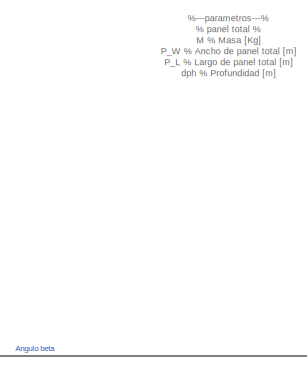
[diagram: root canvas - part 1/7, top left region]
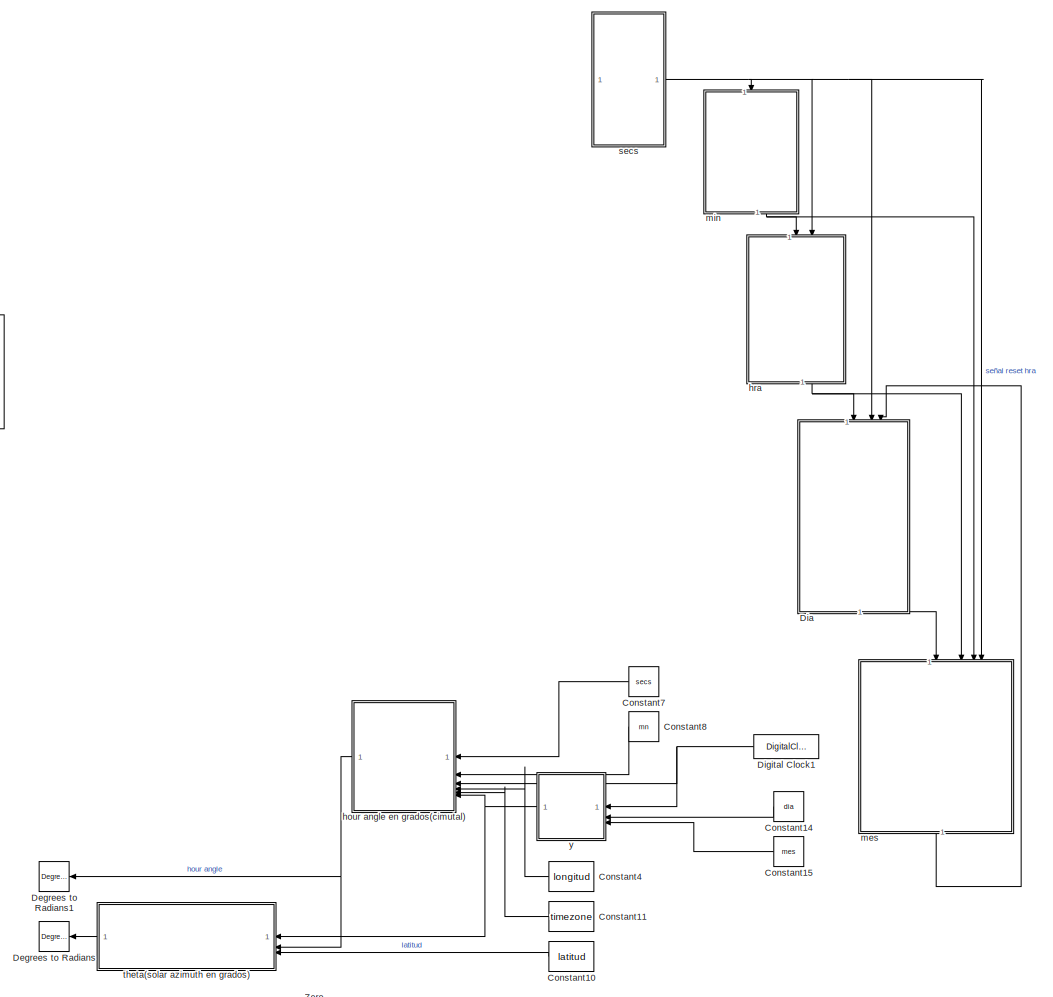
[diagram: root canvas - part 2/7, central region]
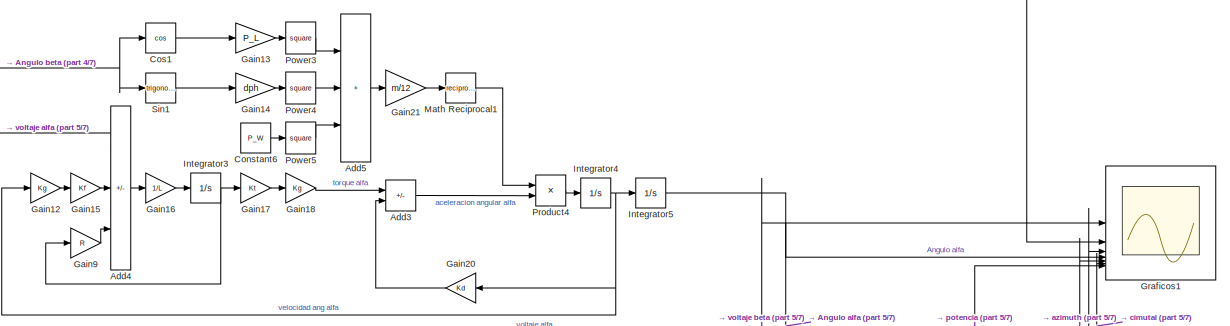
[diagram: root canvas - part 3/7, middle left region]
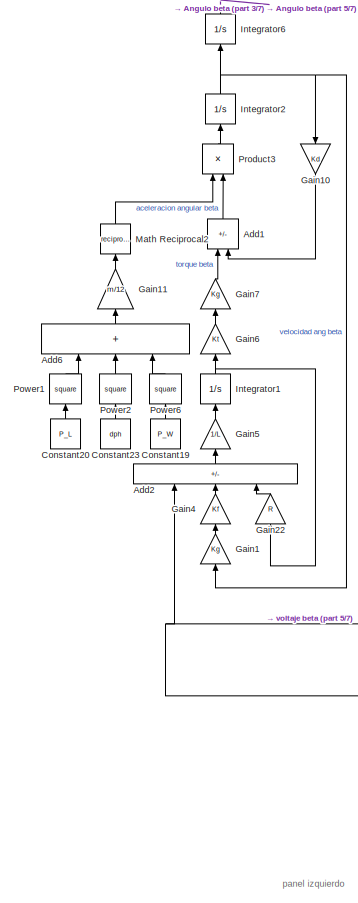
[diagram: root canvas - part 4/7, middle left region]
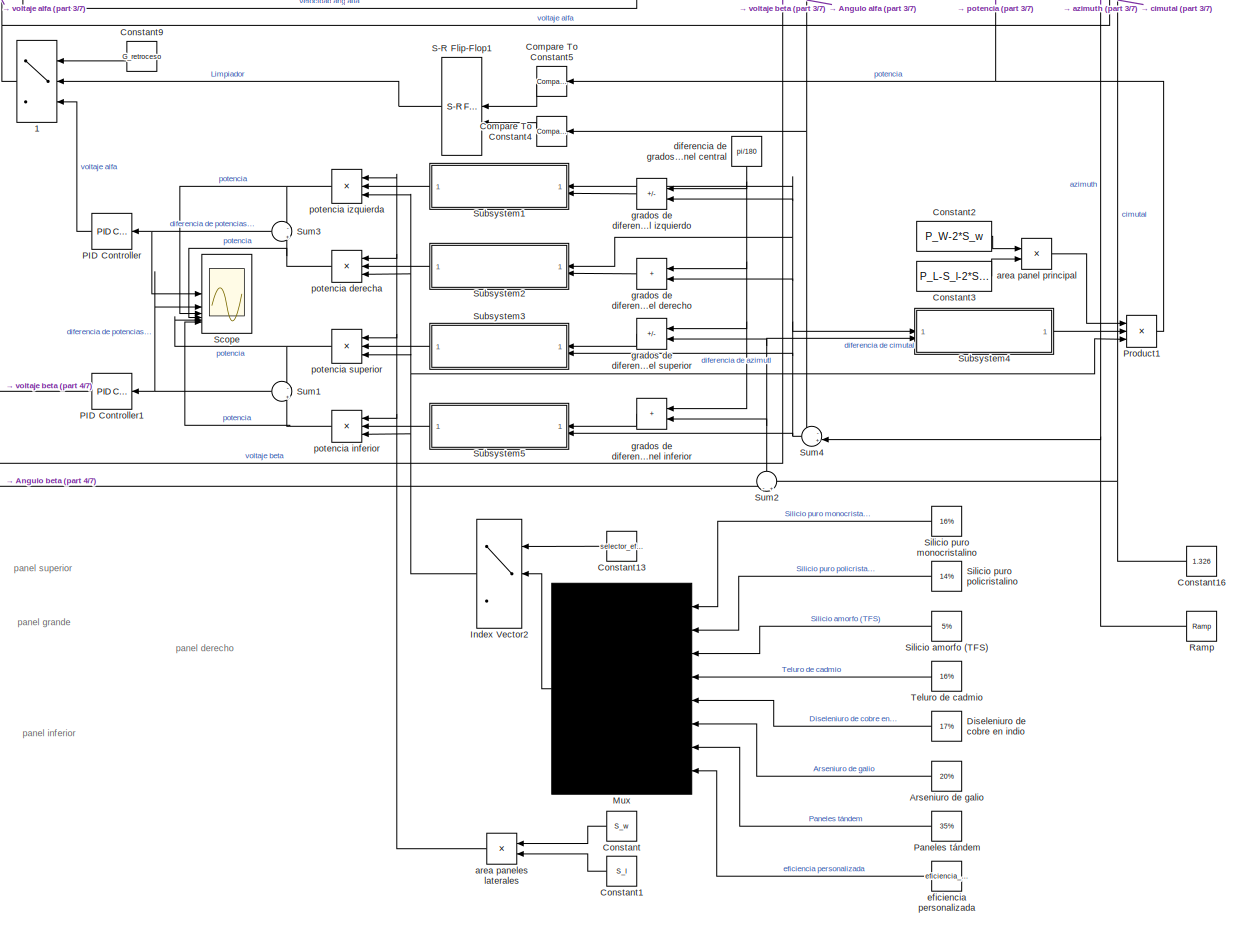
[diagram: root canvas - part 5/7, bottom left region]
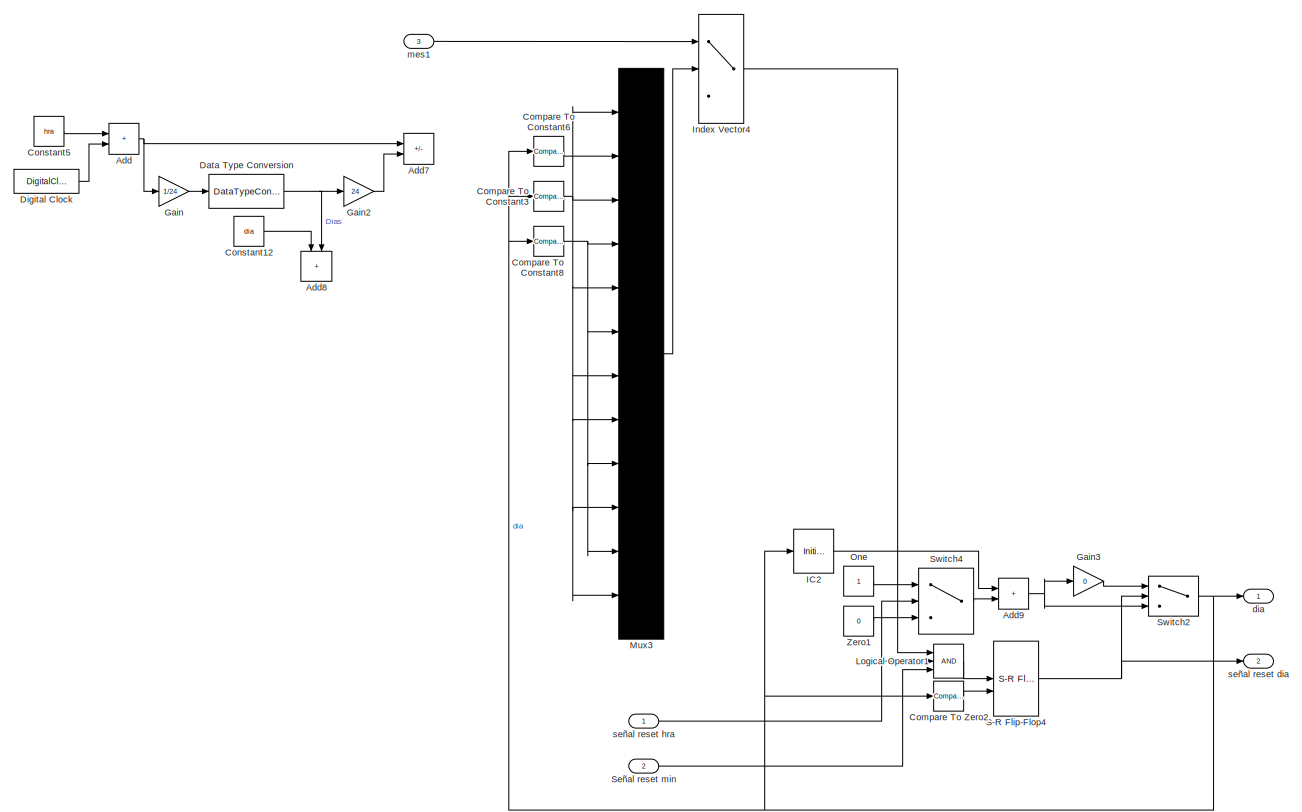
[diagram: root canvas - part 6/7, bottom right region]
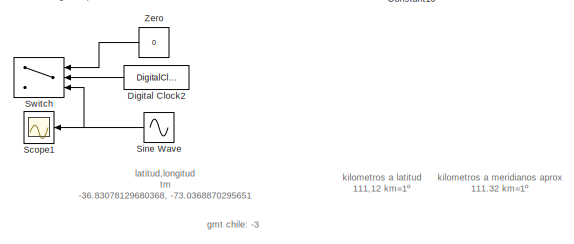
[diagram: root canvas - part 7/7, bottom center region]
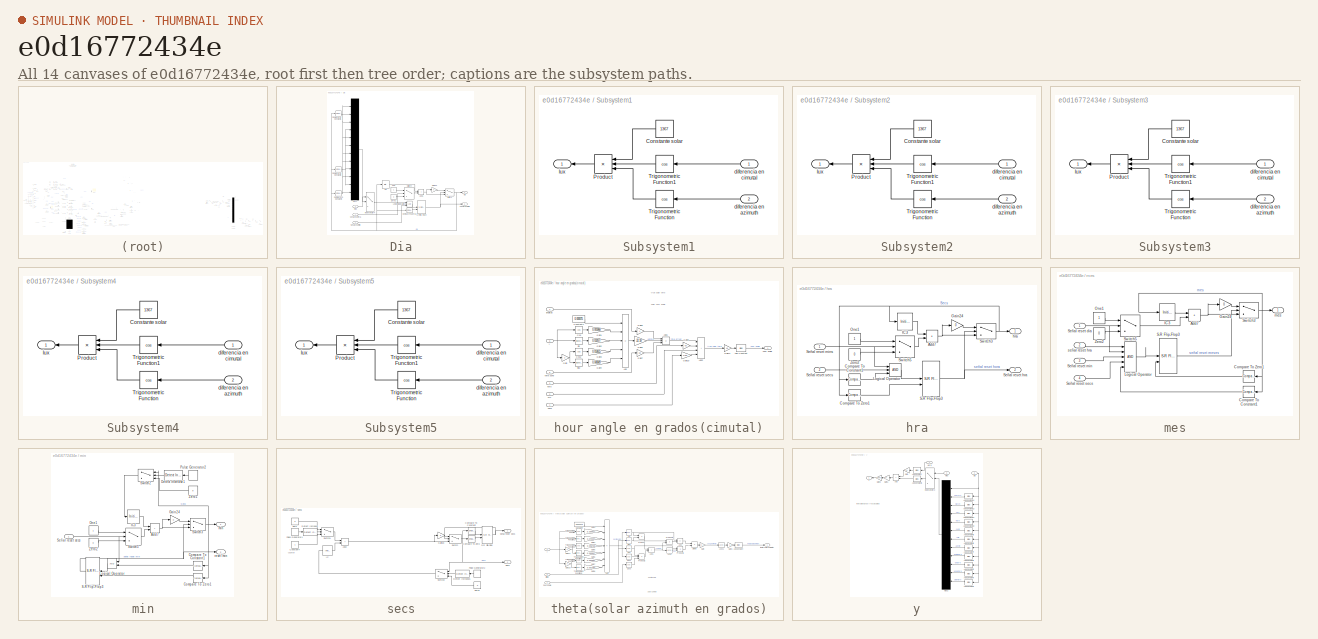
[diagram: thumbnail index - all 14 canvases of the model, root first then tree order]
MODEL slx_e0d16772434e
KIND model
CONFIG AbsTol = auto
CONFIG EnableMultiTasking = off
CONFIG FixedStep = auto
CONFIG MaxStep = auto
CONFIG MinStep = auto
CONFIG RelTol = 1e-3
CONFIG SampleTimeConstraint = Unconstrained
CONFIG SolverName = VariableStepAuto
CONFIG StartTime = 0.0
CONFIG StopTime = 10.0
WORKSPACE source: mxarray member
WORKSPACE Sig: Simulink.Signal (value not decoded)
BLOCK [Switch] 1
  Criteria = u2 > Threshold
  InputSameDT = off
  SaturateOnIntegerOverflow = off
BLOCK [Sum] Add
  Commented = on
  IconShape = rectangular
BLOCK [Sum] Add1
  IconShape = rectangular
  Inputs = +-
  NameLocation = right
BLOCK [Sum] Add2
  IconShape = rectangular
  Inputs = +--
  NameLocation = right
BLOCK [Sum] Add3
  IconShape = rectangular
  Inputs = +-
BLOCK [Sum] Add4
  IconShape = rectangular
  Inputs = +--
BLOCK [Sum] Add5
  IconShape = rectangular
  Inputs = +++
BLOCK [Sum] Add6
  IconShape = rectangular
  Inputs = +++
  NameLocation = right
BLOCK [Sum] Add7
  Commented = on
  IconShape = rectangular
  Inputs = +-
BLOCK [Sum] Add8
  Commented = on
  IconShape = rectangular
  NameLocation = left
BLOCK [Sum] Add9
  Commented = on
  IconShape = rectangular
BLOCK [Constant] Arseniuro de galio 
  Value = 20%
BLOCK [Reference] Compare To Constant3  REF=simulink/Logic and Bit
Operations/Compare
To Constant
  Commented = on
  SourceBlock = simulink/Logic and Bit\nOperations/Compare\nTo Constant
  SourceType = Compare To Constant
BLOCK [Reference] Compare To Constant4  REF=simulink/Logic and Bit
Operations/Compare
To Constant
  SourceBlock = simulink/Logic and Bit\nOperations/Compare\nTo Constant
  SourceType = Compare To Constant
BLOCK [Reference] Compare To Constant5  REF=simulink/Logic and Bit
Operations/Compare
To Constant
  SourceBlock = simulink/Logic and Bit\nOperations/Compare\nTo Constant
  SourceType = Compare To Constant
BLOCK [Reference] Compare To Constant6  REF=simulink/Logic and Bit
Operations/Compare
To Constant
  Commented = on
  SourceBlock = simulink/Logic and Bit\nOperations/Compare\nTo Constant
  SourceType = Compare To Constant
BLOCK [Reference] Compare To Constant8  REF=simulink/Logic and Bit
Operations/Compare
To Constant
  Commented = on
  SourceBlock = simulink/Logic and Bit\nOperations/Compare\nTo Constant
  SourceType = Compare To Constant
BLOCK [Reference] Compare To Zero2  REF=simulink/Logic and Bit
Operations/Compare
To Zero
  Commented = on
  SourceBlock = simulink/Logic and Bit\nOperations/Compare\nTo Zero
  SourceType = Compare To Zero
BLOCK [Constant] Constant
  NameLocation = top
  Value = S_w
BLOCK [Constant] Constant1
  NameLocation = top
  Value = S_l
BLOCK [Constant] Constant10
  NameLocation = top
  Value = latitud
BLOCK [Constant] Constant11
  NameLocation = top
  Value = timezone
BLOCK [Constant] Constant12
  Commented = on
  Value = dia
BLOCK [Constant] Constant13
  Value = selector_eficiencia
BLOCK [Constant] Constant14
  NameLocation = top
  Value = dia
BLOCK [Constant] Constant15
  NameLocation = top
  Value = mes
BLOCK [Constant] Constant16
  NameLocation = top
  Value = 1.326
BLOCK [Constant] Constant19
  NameLocation = right
  Value = P_W
BLOCK [Constant] Constant2
  NameLocation = top
  Value = P_W-2*S_w
BLOCK [Constant] Constant20
  NameLocation = right
  Value = P_L
BLOCK [Constant] Constant23
  NameLocation = right
  Value = dph
BLOCK [Constant] Constant3
  NameLocation = top
  Value = P_L-S_l-2*S_w
BLOCK [Constant] Constant4
  NameLocation = top
  Value = longitud
BLOCK [Constant] Constant5
  Commented = on
  Value = hra
BLOCK [Constant] Constant6
  Value = P_W
BLOCK [Constant] Constant7
  NameLocation = top
  Value = secs
BLOCK [Constant] Constant8
  NameLocation = top
  Value = mn
BLOCK [Constant] Constant9
  NameLocation = top
  Value = G_retroceso
BLOCK [Trigonometry] Cos1
  Operator = cos
BLOCK [DataTypeConversion] Data Type Conversion
  Commented = on
  RndMeth = Floor
  SaturateOnIntegerOverflow = off
BLOCK [Reference] Degrees to Radians  REF=simulink_extras/Transformations/Degrees to
Radians
  NameLocation = top
  SourceBlock = simulink_extras/Transformations/Degrees to\nRadians
  SourceType = DegreesToRadians
BLOCK [Reference] Degrees to Radians1  REF=simulink_extras/Transformations/Degrees to
Radians
  NameLocation = top
  SourceBlock = simulink_extras/Transformations/Degrees to\nRadians
  SourceType = DegreesToRadians
BLOCK [SubSystem] Dia
  NameLocation = left
BLOCK [Sum] Dia/Add6
  IconShape = rectangular
BLOCK [Reference] Dia/Compare To Constant3  REF=simulink/Logic and Bit
Operations/Compare
To Constant
  SourceBlock = simulink/Logic and Bit\nOperations/Compare\nTo Constant
  SourceType = Compare To Constant
BLOCK [Reference] Dia/Compare To Constant6  REF=simulink/Logic and Bit
Operations/Compare
To Constant
  SourceBlock = simulink/Logic and Bit\nOperations/Compare\nTo Constant
  SourceType = Compare To Constant
BLOCK [Reference] Dia/Compare To Constant8  REF=simulink/Logic and Bit
Operations/Compare
To Constant
  SourceBlock = simulink/Logic and Bit\nOperations/Compare\nTo Constant
  SourceType = Compare To Constant
BLOCK [Reference] Dia/Compare To Zero2  REF=simulink/Logic and Bit
Operations/Compare
To Zero
  SourceBlock = simulink/Logic and Bit\nOperations/Compare\nTo Zero
  SourceType = Compare To Zero
BLOCK [Gain] Dia/Gain22
  Gain = 0
BLOCK [InitialCondition] Dia/IC2
  Value = dia
BLOCK [MultiPortSwitch] Dia/Index Vector4
  DataPortOrder = Zero-based contiguous
  InputSameDT = off
  Inputs = 1
  NameLocation = top
  SaturateOnIntegerOverflow = off
  zeroidx = on
BLOCK [Logic] Dia/Logical Operator1
  AllPortsSameDT = off
  Inputs = 3
  OutDataTypeStr = boolean
BLOCK [Mux] Dia/Mux3
  DisplayOption = signals
  Inputs = 12
  NameLocation = top
BLOCK [Constant] Dia/One
  OutDataTypeStr = Inherit: Inherit via back propagation
BLOCK [Reference] Dia/S-R Flip-Flop4  REF=simulink_extras/Flip Flops/S-R
Flip-Flop
  SourceBlock = simulink_extras/Flip Flops/S-R\nFlip-Flop
  SourceType = SRFlipFlop
BLOCK [Inport] Dia/Señal reset min
  Port = 2
BLOCK [Switch] Dia/Switch2
  Criteria = u2 > Threshold
  InputSameDT = off
  SaturateOnIntegerOverflow = off
BLOCK [Switch] Dia/Switch4
  Criteria = u2 > Threshold
  InputSameDT = off
  SaturateOnIntegerOverflow = off
BLOCK [Constant] Dia/Zero1
  OutDataTypeStr = Inherit: Inherit via back propagation
  Value = 0
BLOCK [Outport] Dia/dia
  NameLocation = top
BLOCK [Inport] Dia/mes
  Port = 3
BLOCK [Outport] Dia/señal reset dia
  Port = 2
BLOCK [Inport] Dia/señal reset hra
BLOCK [DigitalClock] Digital Clock
  Commented = on
BLOCK [DigitalClock] Digital Clock1
  NameLocation = top
BLOCK [DigitalClock] Digital Clock2
  NameLocation = top
BLOCK [Constant] Diseleniuro de cobre en indio
  Value = 17%
BLOCK [Gain] Gain
  Commented = on
  Gain = 1/24
BLOCK [Gain] Gain1
  Gain = Kg
  NameLocation = right
BLOCK [Gain] Gain10
  Gain = Kd
  NameLocation = right
BLOCK [Gain] Gain11
  Gain = m/12
  NameLocation = right
BLOCK [Gain] Gain12
  Gain = Kg
BLOCK [Gain] Gain13
  Gain = P_L
BLOCK [Gain] Gain14
  Gain = dph
BLOCK [Gain] Gain15
  Gain = Kf
BLOCK [Gain] Gain16
  Gain = 1/L
BLOCK [Gain] Gain17
  Gain = Kt
BLOCK [Gain] Gain18
  Gain = Kg
BLOCK [Gain] Gain2
  Commented = on
  Gain = 24
BLOCK [Gain] Gain20
  Gain = Kd
BLOCK [Gain] Gain21
  Gain = m/12
BLOCK [Gain] Gain22
  Gain = R
  NameLocation = right
BLOCK [Gain] Gain3
  Commented = on
  Gain = 0
BLOCK [Gain] Gain4
  Gain = Kf
  NameLocation = right
BLOCK [Gain] Gain5
  Gain = 1/L
  NameLocation = right
BLOCK [Gain] Gain6
  Gain = Kt
  NameLocation = right
BLOCK [Gain] Gain7
  Gain = Kg
  NameLocation = right
BLOCK [Gain] Gain9
  Gain = R
BLOCK [Scope] Graficos1
  Floating = off
  NumInputPorts = 7
  ScopeSpecificationString = Simulink.scopes.TimeScopeBlockCfg('CurrentConfiguration', extmgr.ConfigurationSet(extmgr.Configuration('Core','General UI',true,'DisplayFullSourceName',true),extmgr.Configuration('Core','Source UI',true),extmgr.Configuration('Sources','WiredSimulink',true,'DataLoggingVariableName','ScopeData1'),extmgr.Configuration('Visuals','Time Domain',true,'SerializedDisplays',{struct('MinYLimReal','-18.75161'...<+6292ch>
BLOCK [InitialCondition] IC2
  Commented = on
  Value = dia
BLOCK [MultiPortSwitch] Index Vector2
  DataPortOrder = Zero-based contiguous
  InputSameDT = off
  Inputs = 1
  SaturateOnIntegerOverflow = off
  zeroidx = on
BLOCK [MultiPortSwitch] Index Vector4
  Commented = on
  DataPortOrder = Zero-based contiguous
  InputSameDT = off
  Inputs = 1
  NameLocation = top
  SaturateOnIntegerOverflow = off
  zeroidx = on
BLOCK [Integrator] Integrator1
  NameLocation = right
BLOCK [Integrator] Integrator2
  NameLocation = right
BLOCK [Integrator] Integrator3
BLOCK [Integrator] Integrator4
BLOCK [Integrator] Integrator5
BLOCK [Integrator] Integrator6
  NameLocation = right
BLOCK [Logic] Logical Operator1
  AllPortsSameDT = off
  Commented = on
  Inputs = 3
  OutDataTypeStr = boolean
BLOCK [Math] Math Reciprocal1
  Operator = reciprocal
  SignedPower = on
BLOCK [Math] Math Reciprocal2
  NameLocation = top
  Operator = reciprocal
  SignedPower = on
BLOCK [Mux] Mux
  DisplayOption = signals
  Inputs = 8
BLOCK [Mux] Mux3
  Commented = on
  DisplayOption = signals
  Inputs = 12
  NameLocation = top
BLOCK [Constant] One
  Commented = on
  OutDataTypeStr = Inherit: Inherit via back propagation
BLOCK [Reference] PID Controller  REF=slpidlib/PID Controller
  LibrarySourceBlock = simulink/Continuous/PID Controller
  NameLocation = top
  SourceBlock = slpidlib/PID Controller
  SourceType = PID 1dof
BLOCK [Reference] PID Controller1  REF=slpidlib/PID Controller
  LibrarySourceBlock = simulink/Continuous/PID Controller
  NameLocation = top
  SourceBlock = slpidlib/PID Controller
  SourceType = PID 1dof
BLOCK [Constant] Paneles tándem
  Value = 35%
BLOCK [Math] Power1
  NameLocation = right
  Operator = square
BLOCK [Math] Power2
  NameLocation = right
  Operator = square
BLOCK [Math] Power3
  Operator = square
BLOCK [Math] Power4
  Operator = square
BLOCK [Math] Power5
  Operator = square
BLOCK [Math] Power6
  NameLocation = right
  Operator = square
BLOCK [Product] Product1
  Inputs = 3
  NameLocation = top
BLOCK [Product] Product3
  NameLocation = right
BLOCK [Product] Product4
BLOCK [Reference] Ramp  REF=simulink/Sources/Ramp
  NameLocation = top
  SourceBlock = simulink/Sources/Ramp
  SourceType = Ramp
BLOCK [Reference] S-R Flip-Flop1  REF=simulink_extras/Flip Flops/S-R
Flip-Flop
  SourceBlock = simulink_extras/Flip Flops/S-R\nFlip-Flop
  SourceType = SRFlipFlop
BLOCK [Reference] S-R Flip-Flop4  REF=simulink_extras/Flip Flops/S-R
Flip-Flop
  Commented = on
  SourceBlock = simulink_extras/Flip Flops/S-R\nFlip-Flop
  SourceType = SRFlipFlop
BLOCK [Scope] Scope
  Floating = off
  NumInputPorts = 6
  ScopeSpecificationString = Simulink.scopes.TimeScopeBlockCfg('CurrentConfiguration', extmgr.ConfigurationSet(extmgr.Configuration('Core','General UI',true),extmgr.Configuration('Core','Source UI',true),extmgr.Configuration('Sources','WiredSimulink',true,'DataLoggingVariableName','ScopeData1'),extmgr.Configuration('Visuals','Time Domain',true,'SerializedDisplays',{struct('MinYLimReal','-9.54298','MaxYLimReal','9.54298','YLab...<+4890ch>
BLOCK [Scope] Scope1
  Floating = off
  NameLocation = top
  NumInputPorts = 1
  ScopeSpecificationString = Simulink.scopes.TimeScopeBlockCfg('CurrentConfiguration', extmgr.ConfigurationSet(extmgr.Configuration('Core','General UI',true),extmgr.Configuration('Core','Source UI',true),extmgr.Configuration('Sources','WiredSimulink',true,'DataLoggingVariableName','ScopeData2'),extmgr.Configuration('Visuals','Time Domain',true,'SerializedDisplays',{struct('MinYLimReal','-1.00000','MaxYLimReal','1.00000','YLab...<+1557ch>
BLOCK [Inport] Señal reset min
  Port = 2
BLOCK [Constant] Silicio amorfo (TFS)
  Value = 5%
BLOCK [Constant] Silicio puro monocristalino
  Value = 16%
BLOCK [Constant] Silicio puro policristalino
  Value = 14%
BLOCK [Trigonometry] Sin1
BLOCK [Sin] Sine Wave
  Amplitude = 1.22438338
  Frequency = 1/4.3
  NameLocation = top
  SampleTime = 0
BLOCK [SubSystem] Subsystem1
  NameLocation = top
BLOCK [Constant] Subsystem1/Constante solar
  NameLocation = top
  Value = 1367
BLOCK [Product] Subsystem1/Product
  Inputs = 3
  NameLocation = top
BLOCK [Trigonometry] Subsystem1/Trigonometric Function
  NameLocation = top
  Operator = cos
BLOCK [Trigonometry] Subsystem1/Trigonometric Function1
  NameLocation = top
  Operator = cos
BLOCK [Inport] Subsystem1/diferencia en azimuth
  NameLocation = top
  Port = 2
BLOCK [Inport] Subsystem1/diferencia en cimutal
  NameLocation = top
BLOCK [Outport] Subsystem1/lux
  NameLocation = top
BLOCK [SubSystem] Subsystem2
  NameLocation = top
BLOCK [Constant] Subsystem2/Constante solar
  NameLocation = top
  Value = 1367
BLOCK [Product] Subsystem2/Product
  Inputs = 3
  NameLocation = top
BLOCK [Trigonometry] Subsystem2/Trigonometric Function
  NameLocation = top
  Operator = cos
BLOCK [Trigonometry] Subsystem2/Trigonometric Function1
  NameLocation = top
  Operator = cos
BLOCK [Inport] Subsystem2/diferencia en azimuth
  NameLocation = top
  Port = 2
BLOCK [Inport] Subsystem2/diferencia en cimutal
  NameLocation = top
BLOCK [Outport] Subsystem2/lux
  NameLocation = top
BLOCK [SubSystem] Subsystem3
  NameLocation = top
BLOCK [Constant] Subsystem3/Constante solar
  NameLocation = top
  Value = 1367
BLOCK [Product] Subsystem3/Product
  Inputs = 3
  NameLocation = top
BLOCK [Trigonometry] Subsystem3/Trigonometric Function
  NameLocation = top
  Operator = cos
BLOCK [Trigonometry] Subsystem3/Trigonometric Function1
  NameLocation = top
  Operator = cos
BLOCK [Inport] Subsystem3/diferencia en azimuth
  NameLocation = top
  Port = 2
BLOCK [Inport] Subsystem3/diferencia en cimutal
  NameLocation = top
BLOCK [Outport] Subsystem3/lux
  NameLocation = top
BLOCK [SubSystem] Subsystem4
BLOCK [Constant] Subsystem4/Constante solar
  NameLocation = top
  Value = 1367
BLOCK [Product] Subsystem4/Product
  Inputs = 3
  NameLocation = top
BLOCK [Trigonometry] Subsystem4/Trigonometric Function
  NameLocation = top
  Operator = cos
BLOCK [Trigonometry] Subsystem4/Trigonometric Function1
  NameLocation = top
  Operator = cos
BLOCK [Inport] Subsystem4/diferencia en azimuth
  NameLocation = top
  Port = 2
BLOCK [Inport] Subsystem4/diferencia en cimutal
  NameLocation = top
BLOCK [Outport] Subsystem4/lux
  NameLocation = top
BLOCK [SubSystem] Subsystem5
  NameLocation = top
BLOCK [Constant] Subsystem5/Constante solar
  NameLocation = top
  Value = 1367
BLOCK [Product] Subsystem5/Product
  Inputs = 3
  NameLocation = top
BLOCK [Trigonometry] Subsystem5/Trigonometric Function
  NameLocation = top
  Operator = cos
BLOCK [Trigonometry] Subsystem5/Trigonometric Function1
  NameLocation = top
  Operator = cos
BLOCK [Inport] Subsystem5/diferencia en azimuth
  NameLocation = top
  Port = 2
BLOCK [Inport] Subsystem5/diferencia en cimutal
  NameLocation = top
BLOCK [Outport] Subsystem5/lux
  NameLocation = top
BLOCK [Sum] Sum1
  Inputs = -|+
  NameLocation = top
BLOCK [Sum] Sum2
  Inputs = -|+
  NameLocation = right
BLOCK [Sum] Sum3
  Inputs = -|+
  NameLocation = top
BLOCK [Sum] Sum4
  Inputs = -+|
BLOCK [Switch] Switch
  Criteria = u2 > Threshold
  InputSameDT = off
  NameLocation = top
  SaturateOnIntegerOverflow = off
  Threshold = 14
BLOCK [Switch] Switch2
  Commented = on
  Criteria = u2 > Threshold
  InputSameDT = off
  SaturateOnIntegerOverflow = off
BLOCK [Switch] Switch4
  Commented = on
  Criteria = u2 > Threshold
  InputSameDT = off
  SaturateOnIntegerOverflow = off
BLOCK [Constant] Teluro de cadmio 
  Value = 16%
BLOCK [Constant] Zero
  NameLocation = top
  OutDataTypeStr = Inherit: Inherit via back propagation
  Value = 0
BLOCK [Constant] Zero1
  Commented = on
  OutDataTypeStr = Inherit: Inherit via back propagation
  Value = 0
BLOCK [Product] area panel principal
BLOCK [Product] area paneles laterales
BLOCK [Outport] dia
  NameLocation = top
BLOCK [Constant] diferencia de grados respecto al panel central
  NameLocation = left
  Value = pi/180
BLOCK [Constant] eficiencia personalizada
  Value = eficiencia_custom
BLOCK [Sum] grados de diferencia en el panel derecho
  IconShape = rectangular
BLOCK [Sum] grados de diferencia en el panel inferior
  IconShape = rectangular
  NameLocation = top
BLOCK [Sum] grados de diferencia en el panel izquierdo
  IconShape = rectangular
  Inputs = -+
BLOCK [Sum] grados de diferencia en el panel superior
  IconShape = rectangular
  Inputs = -+
  NameLocation = top
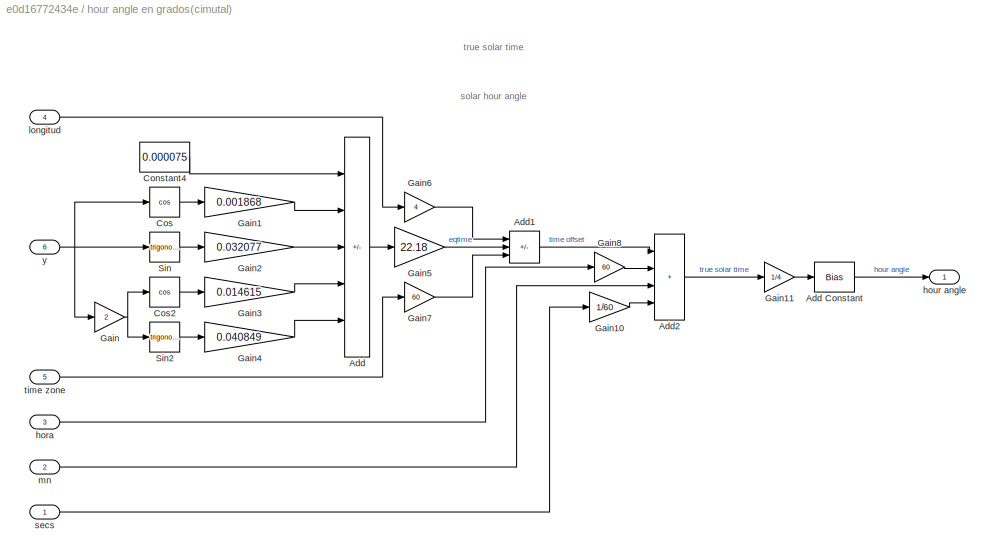
BLOCK [SubSystem] hour angle en grados(cimutal)
  NameLocation = top
BLOCK [Sum] hour angle en grados(cimutal)/Add
  IconShape = rectangular
  Inputs = ++---
BLOCK [Bias] hour angle en grados(cimutal)/Add Constant
  Bias = -180
  SaturateOnIntegerOverflow = off
BLOCK [Sum] hour angle en grados(cimutal)/Add1
  IconShape = rectangular
  Inputs = ++-
BLOCK [Sum] hour angle en grados(cimutal)/Add2
  IconShape = rectangular
  Inputs = ++++
BLOCK [Constant] hour angle en grados(cimutal)/Constant4
  Value = 0.000075
BLOCK [Trigonometry] hour angle en grados(cimutal)/Cos
  Operator = cos
BLOCK [Trigonometry] hour angle en grados(cimutal)/Cos2
  Operator = cos
BLOCK [Gain] hour angle en grados(cimutal)/Gain
  Gain = 2
BLOCK [Gain] hour angle en grados(cimutal)/Gain1
  Gain = 0.001868
BLOCK [Gain] hour angle en grados(cimutal)/Gain10
  Gain = 1/60
BLOCK [Gain] hour angle en grados(cimutal)/Gain11
  Gain = 1/4
BLOCK [Gain] hour angle en grados(cimutal)/Gain2
  Gain = 0.032077
BLOCK [Gain] hour angle en grados(cimutal)/Gain3
  Gain = 0.014615
BLOCK [Gain] hour angle en grados(cimutal)/Gain4
  Gain = 0.040849
BLOCK [Gain] hour angle en grados(cimutal)/Gain5
  Gain = 22.18
BLOCK [Gain] hour angle en grados(cimutal)/Gain6
  Gain = 4
BLOCK [Gain] hour angle en grados(cimutal)/Gain7
  Gain = 60
BLOCK [Gain] hour angle en grados(cimutal)/Gain8
  Gain = 60
BLOCK [Trigonometry] hour angle en grados(cimutal)/Sin
BLOCK [Trigonometry] hour angle en grados(cimutal)/Sin2
BLOCK [Inport] hour angle en grados(cimutal)/hora
  Port = 3
BLOCK [Outport] hour angle en grados(cimutal)/hour angle
BLOCK [Inport] hour angle en grados(cimutal)/longitud
  Port = 4
BLOCK [Inport] hour angle en grados(cimutal)/mn
  Port = 2
BLOCK [Inport] hour angle en grados(cimutal)/secs
BLOCK [Inport] hour angle en grados(cimutal)/time zone
  Port = 5
BLOCK [Inport] hour angle en grados(cimutal)/y
  Port = 6
BLOCK [SubSystem] hra
BLOCK [Sum] hra/Add7
  IconShape = rectangular
BLOCK [Reference] hra/Compare To Constant1  REF=simulink/Logic and Bit
Operations/Compare
To Constant
  SourceBlock = simulink/Logic and Bit\nOperations/Compare\nTo Constant
  SourceType = Compare To Constant
BLOCK [Reference] hra/Compare To Zero1  REF=simulink/Logic and Bit
Operations/Compare
To Zero
  SourceBlock = simulink/Logic and Bit\nOperations/Compare\nTo Zero
  SourceType = Compare To Zero
BLOCK [Gain] hra/Gain24
  Gain = 0
BLOCK [InitialCondition] hra/IC3
  Value = hra
BLOCK [Logic] hra/Logical Operator
  AllPortsSameDT = off
  Inputs = 3
  OutDataTypeStr = boolean
BLOCK [Constant] hra/One1
  OutDataTypeStr = Inherit: Inherit via back propagation
BLOCK [Reference] hra/S-R Flip-Flop3  REF=simulink_extras/Flip Flops/S-R
Flip-Flop
  SourceBlock = simulink_extras/Flip Flops/S-R\nFlip-Flop
  SourceType = SRFlipFlop
BLOCK [Outport] hra/Señal reset hra
  Port = 2
BLOCK [Inport] hra/Señal reset mins
BLOCK [Inport] hra/Señal reset secs
  Port = 2
BLOCK [Switch] hra/Switch3
  Criteria = u2 > Threshold
  InputSameDT = off
  SaturateOnIntegerOverflow = off
BLOCK [Switch] hra/Switch5
  Criteria = u2 > Threshold
  InputSameDT = off
  SaturateOnIntegerOverflow = off
BLOCK [Constant] hra/Zero2
  OutDataTypeStr = Inherit: Inherit via back propagation
  Value = 0
BLOCK [Outport] hra/hra
  NameLocation = top
BLOCK [SubSystem] mes
  NameLocation = left
BLOCK [Sum] mes/Add7
  IconShape = rectangular
BLOCK [Reference] mes/Compare To Constant1  REF=simulink/Logic and Bit
Operations/Compare
To Constant
  NameLocation = top
  SourceBlock = simulink/Logic and Bit\nOperations/Compare\nTo Constant
  SourceType = Compare To Constant
BLOCK [Reference] mes/Compare To Zero1  REF=simulink/Logic and Bit
Operations/Compare
To Zero
  NameLocation = top
  SourceBlock = simulink/Logic and Bit\nOperations/Compare\nTo Zero
  SourceType = Compare To Zero
BLOCK [Gain] mes/Gain24
  Gain = 0
BLOCK [InitialCondition] mes/IC3
  Value = mes
BLOCK [Logic] mes/Logical Operator
  AllPortsSameDT = off
  Inputs = 5
  OutDataTypeStr = boolean
BLOCK [Constant] mes/One1
  OutDataTypeStr = Inherit: Inherit via back propagation
BLOCK [Reference] mes/S-R Flip-Flop3  REF=simulink_extras/Flip Flops/S-R
Flip-Flop
  SourceBlock = simulink_extras/Flip Flops/S-R\nFlip-Flop
  SourceType = SRFlipFlop
BLOCK [Inport] mes/Señal reset dia 
BLOCK [Inport] mes/Señal reset min
  Port = 3
BLOCK [Inport] mes/Señal reset secs
  Port = 4
BLOCK [Switch] mes/Switch3
  Criteria = u2 > Threshold
  InputSameDT = off
  SaturateOnIntegerOverflow = off
BLOCK [Switch] mes/Switch5
  Criteria = u2 > Threshold
  InputSameDT = off
  SaturateOnIntegerOverflow = off
BLOCK [Constant] mes/Zero2
  OutDataTypeStr = Inherit: Inherit via back propagation
  Value = 0
BLOCK [Outport] mes/mes
  NameLocation = top
BLOCK [Inport] mes/señal reset hra
  Port = 2
BLOCK [Inport] mes1
  Port = 3
BLOCK [SubSystem] min
  NameLocation = right
BLOCK [Sum] min/Add7
  IconShape = rectangular
BLOCK [Reference] min/Compare To Constant1  REF=simulink/Logic and Bit
Operations/Compare
To Constant
  NameLocation = top
  SourceBlock = simulink/Logic and Bit\nOperations/Compare\nTo Constant
  SourceType = Compare To Constant
BLOCK [Reference] min/Compare To Zero1  REF=simulink/Logic and Bit
Operations/Compare
To Zero
  NameLocation = top
  SourceBlock = simulink/Logic and Bit\nOperations/Compare\nTo Zero
  SourceType = Compare To Zero
BLOCK [Reference] min/Detect Increase1  REF=simulink/Logic and Bit
Operations/Detect
Increase
  NameLocation = top
  SourceBlock = simulink/Logic and Bit\nOperations/Detect\nIncrease
  SourceType = Detect Increase
BLOCK [Gain] min/Gain24
  Gain = 0
BLOCK [InitialCondition] min/IC3
  Value = mn
BLOCK [Logic] min/Logical Operator
  AllPortsSameDT = off
  NameLocation = top
  OutDataTypeStr = boolean
BLOCK [Constant] min/One1
  OutDataTypeStr = Inherit: Inherit via back propagation
BLOCK [DiscretePulseGenerator] min/Pulse Generator2
  NameLocation = top
  Period = 1/60
  PulseType = Time based
  PulseWidth = 5
BLOCK [Reference] min/S-R Flip-Flop3  REF=simulink_extras/Flip Flops/S-R
Flip-Flop
  NameLocation = top
  SourceBlock = simulink_extras/Flip Flops/S-R\nFlip-Flop
  SourceType = SRFlipFlop
BLOCK [Inport] min/Señal reset secs
BLOCK [Switch] min/Switch2
  Criteria = u2 > Threshold
  InputSameDT = off
  NameLocation = top
  SaturateOnIntegerOverflow = off
BLOCK [Switch] min/Switch3
  Criteria = u2 > Threshold
  InputSameDT = off
  SaturateOnIntegerOverflow = off
BLOCK [Switch] min/Switch5
  Criteria = u2 > Threshold
  InputSameDT = off
  SaturateOnIntegerOverflow = off
BLOCK [Constant] min/Zero1
  NameLocation = top
  OutDataTypeStr = Inherit: Inherit via back propagation
  Value = 0
BLOCK [Constant] min/Zero2
  OutDataTypeStr = Inherit: Inherit via back propagation
  Value = 0
BLOCK [Outport] min/min
  NameLocation = top
BLOCK [Outport] min/reset min
  Port = 2
BLOCK [Product] potencia derecha
  Inputs = 3
BLOCK [Product] potencia inferior
  Inputs = 3
BLOCK [Product] potencia izquierda
  Inputs = 3
BLOCK [Product] potencia superior
  Inputs = 3
BLOCK [SubSystem] secs
BLOCK [Sum] secs/Add2
  IconShape = rectangular
BLOCK [Reference] secs/Compare To Constant  REF=simulink/Logic and Bit
Operations/Compare
To Constant
  SourceBlock = simulink/Logic and Bit\nOperations/Compare\nTo Constant
  SourceType = Compare To Constant
BLOCK [Reference] secs/Compare To Zero  REF=simulink/Logic and Bit
Operations/Compare
To Zero
  SourceBlock = simulink/Logic and Bit\nOperations/Compare\nTo Zero
  SourceType = Compare To Zero
BLOCK [Constant] secs/Constant4
BLOCK [Reference] secs/Detect Increase  REF=simulink/Logic and Bit
Operations/Detect
Increase
  SourceBlock = simulink/Logic and Bit\nOperations/Detect\nIncrease
  SourceType = Detect Increase
BLOCK [Reference] secs/Detect Increase1  REF=simulink/Logic and Bit
Operations/Detect
Increase
  NameLocation = top
  SourceBlock = simulink/Logic and Bit\nOperations/Detect\nIncrease
  SourceType = Detect Increase
BLOCK [Gain] secs/Gain23
  Gain = 0
BLOCK [InitialCondition] secs/IC
  Value = secs
BLOCK [DiscretePulseGenerator] secs/Pulse Generator1
  Period = 1/3600
  PulseType = Time based
  PulseWidth = 5
BLOCK [DiscretePulseGenerator] secs/Pulse Generator2
  NameLocation = top
  Period = 1/3600
  PulseType = Time based
  PulseWidth = 5
BLOCK [Reference] secs/S-R Flip-Flop  REF=simulink_extras/Flip Flops/S-R
Flip-Flop
  SourceBlock = simulink_extras/Flip Flops/S-R\nFlip-Flop
  SourceType = SRFlipFlop
BLOCK [Outport] secs/Secs
  Port = 2
BLOCK [Switch] secs/Switch
  Criteria = u2 > Threshold
  InputSameDT = off
  SaturateOnIntegerOverflow = off
BLOCK [Switch] secs/Switch1
  Criteria = u2 > Threshold
  InputSameDT = off
  SaturateOnIntegerOverflow = off
BLOCK [Switch] secs/Switch2
  Criteria = u2 > Threshold
  InputSameDT = off
  NameLocation = top
  SaturateOnIntegerOverflow = off
BLOCK [Constant] secs/Zero
  OutDataTypeStr = Inherit: Inherit via back propagation
  Value = 0
BLOCK [Constant] secs/Zero1
  NameLocation = top
  OutDataTypeStr = Inherit: Inherit via back propagation
  Value = 0
BLOCK [Outport] secs/señal reset secs
BLOCK [Outport] señal reset dia
  Port = 2
BLOCK [Inport] señal reset hra
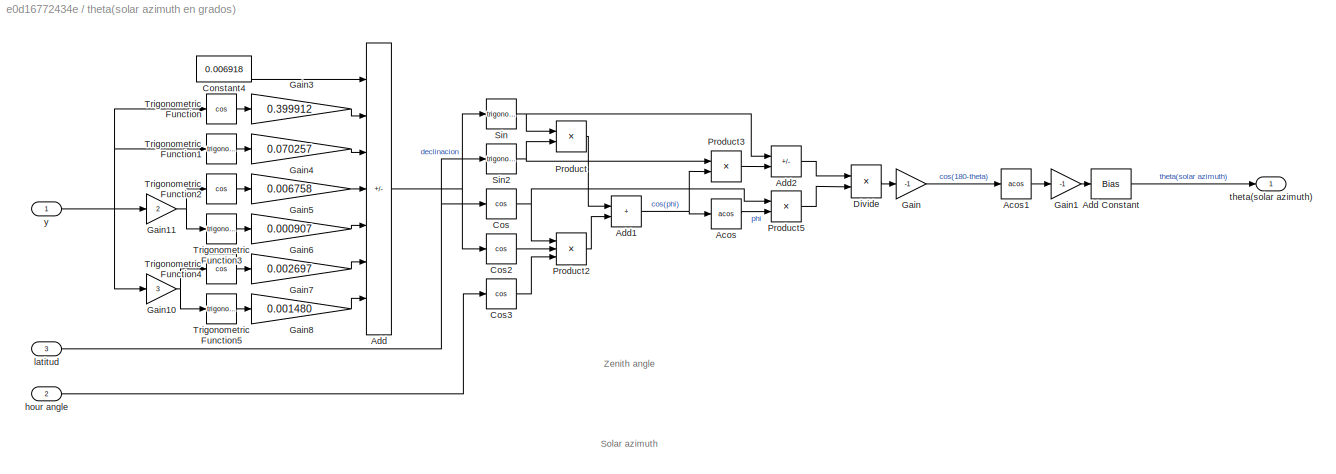
BLOCK [SubSystem] theta(solar azimuth en grados)
  NameLocation = top
BLOCK [Trigonometry] theta(solar azimuth en grados)/Acos
  Operator = acos
BLOCK [Trigonometry] theta(solar azimuth en grados)/Acos1
  Operator = acos
BLOCK [Sum] theta(solar azimuth en grados)/Add
  IconShape = rectangular
  Inputs = +-+-+-+
BLOCK [Bias] theta(solar azimuth en grados)/Add Constant
  Bias = 180
  SaturateOnIntegerOverflow = off
BLOCK [Sum] theta(solar azimuth en grados)/Add1
  IconShape = rectangular
BLOCK [Sum] theta(solar azimuth en grados)/Add2
  IconShape = rectangular
  Inputs = -+
BLOCK [Constant] theta(solar azimuth en grados)/Constant4
  Value = 0.006918
BLOCK [Trigonometry] theta(solar azimuth en grados)/Cos
  Operator = cos
BLOCK [Trigonometry] theta(solar azimuth en grados)/Cos2
  Operator = cos
BLOCK [Trigonometry] theta(solar azimuth en grados)/Cos3
  Operator = cos
BLOCK [Product] theta(solar azimuth en grados)/Divide
  Inputs = */
BLOCK [Gain] theta(solar azimuth en grados)/Gain
  Gain = -1
BLOCK [Gain] theta(solar azimuth en grados)/Gain1
  Gain = -1
BLOCK [Gain] theta(solar azimuth en grados)/Gain10
  Gain = 3
  NameLocation = top
BLOCK [Gain] theta(solar azimuth en grados)/Gain11
  Gain = 2
  NameLocation = top
BLOCK [Gain] theta(solar azimuth en grados)/Gain3
  Gain = 0.399912
  NameLocation = top
BLOCK [Gain] theta(solar azimuth en grados)/Gain4
  Gain = 0.070257
  NameLocation = top
BLOCK [Gain] theta(solar azimuth en grados)/Gain5
  Gain = 0.006758
  NameLocation = top
BLOCK [Gain] theta(solar azimuth en grados)/Gain6
  Gain = 0.000907
  NameLocation = top
BLOCK [Gain] theta(solar azimuth en grados)/Gain7
  Gain = 0.002697
  NameLocation = top
BLOCK [Gain] theta(solar azimuth en grados)/Gain8
  Gain = 0.001480
  NameLocation = top
BLOCK [Product] theta(solar azimuth en grados)/Product
BLOCK [Product] theta(solar azimuth en grados)/Product2
  Inputs = 3
BLOCK [Product] theta(solar azimuth en grados)/Product3
BLOCK [Product] theta(solar azimuth en grados)/Product5
BLOCK [Trigonometry] theta(solar azimuth en grados)/Sin
BLOCK [Trigonometry] theta(solar azimuth en grados)/Sin2
BLOCK [Trigonometry] theta(solar azimuth en grados)/Trigonometric Function
  NameLocation = top
  Operator = cos
BLOCK [Trigonometry] theta(solar azimuth en grados)/Trigonometric Function1
  NameLocation = top
BLOCK [Trigonometry] theta(solar azimuth en grados)/Trigonometric Function2
  NameLocation = top
  Operator = cos
BLOCK [Trigonometry] theta(solar azimuth en grados)/Trigonometric Function3
  NameLocation = top
BLOCK [Trigonometry] theta(solar azimuth en grados)/Trigonometric Function4
  NameLocation = top
  Operator = cos
BLOCK [Trigonometry] theta(solar azimuth en grados)/Trigonometric Function5
  NameLocation = top
BLOCK [Inport] theta(solar azimuth en grados)/hour angle
  Port = 2
BLOCK [Inport] theta(solar azimuth en grados)/latitud
  Port = 3
BLOCK [Outport] theta(solar azimuth en grados)/theta(solar azimuth)
BLOCK [Inport] theta(solar azimuth en grados)/y
BLOCK [SubSystem] y
  NameLocation = top
BLOCK [Sum] y/Add
  IconShape = rectangular
BLOCK [Bias] y/Add Constant
  Bias = -12
  SaturateOnIntegerOverflow = off
BLOCK [Bias] y/Add Constant1
  Bias = -1
  SaturateOnIntegerOverflow = off
BLOCK [Bias] y/Add Constant10
  Bias = 120
  NameLocation = top
  SaturateOnIntegerOverflow = off
BLOCK [Bias] y/Add Constant12
  Bias = 90
  NameLocation = top
  SaturateOnIntegerOverflow = off
BLOCK [Bias] y/Add Constant13
  Bias = 59
  NameLocation = top
  SaturateOnIntegerOverflow = off
BLOCK [Bias] y/Add Constant14
  Bias = 31
  NameLocation = top
  SaturateOnIntegerOverflow = off
BLOCK [Bias] y/Add Constant3
  Bias = 334
  NameLocation = top
  SaturateOnIntegerOverflow = off
BLOCK [Bias] y/Add Constant4
  Bias = 304
  NameLocation = top
  SaturateOnIntegerOverflow = off
BLOCK [Bias] y/Add Constant5
  Bias = 273
  NameLocation = top
  SaturateOnIntegerOverflow = off
BLOCK [Bias] y/Add Constant6
  Bias = 243
  NameLocation = top
  SaturateOnIntegerOverflow = off
BLOCK [Bias] y/Add Constant7
  Bias = 212
  NameLocation = top
  SaturateOnIntegerOverflow = off
BLOCK [Bias] y/Add Constant8
  Bias = 181
  NameLocation = top
  SaturateOnIntegerOverflow = off
BLOCK [Bias] y/Add Constant9
  Bias = 151
  NameLocation = top
  SaturateOnIntegerOverflow = off
BLOCK [Gain] y/Gain
  Gain = 24
BLOCK [Gain] y/Gain1
  Gain = pi
BLOCK [Gain] y/Gain2
  Gain = 2/365
BLOCK [Inport] y/Hora
  NameLocation = top
BLOCK [MultiPortSwitch] y/Index Vector3
  DataPortOrder = Zero-based contiguous
  InputSameDT = off
  Inputs = 1
  SaturateOnIntegerOverflow = off
  zeroidx = on
BLOCK [Mux] y/Mux2
  DisplayOption = signals
  Inputs = 12
BLOCK [Inport] y/dia
  Port = 2
BLOCK [Inport] y/mes
  Port = 3
BLOCK [Outport] y/y
ANNOTATION (root): %---parametros---% % panel total % M % Masa [Kg] P_W % Ancho de panel total [m] P_L % Largo de panel total [m] dph % Profundidad [m] beta % Ángulo de elevación [rad] Kd % Constante de amortiguamiento [(N*m)/(rad/s)] %-paneles secundarios-% S_w % Ancho de panel secundario [m] S_l % Largo de panel secundario [m] % motor % Kf % Constante de FEM trasera [V/(rad/s)] Kt % Constante de Torque [N*m/A] L %...<+66ch>
ANNOTATION (root): kilometros a meridianos aprox 111.32 km=1º
ANNOTATION (root): kilometros a latitud 111,12 km=1º
ANNOTATION (root): gmt chile: -3
ANNOTATION (root): latitud,longitud tm -36.83078129680368, -73.0368870295651
ANNOTATION (root): panel derecho
ANNOTATION (root): panel grande
ANNOTATION (root): panel inferior
ANNOTATION (root): panel izquierdo
ANNOTATION (root): panel superior
ANNOTATION hour angle en grados(cimutal): solar hour angle
ANNOTATION hour angle en grados(cimutal): true solar time
ANNOTATION secs: counter
ANNOTATION theta(solar azimuth en grados): Zenith angle
ANNOTATION theta(solar azimuth en grados): Solar azimuth
ANNOTATION y: the fractional year (γ) is calculated
NET 1:1 -> Add4:1, Graficos1:3
LINE Add1:1 -> Product3:2
LINE Add2:1 -> Gain5:1
LINE Add3:1 -> Product4:2
LINE Add4:1 -> Gain16:1
LINE Add5:1 -> Gain21:1
LINE Add6:1 -> Gain11:1
NET Add9:1 -> Gain3:1, Switch2:3
NET Add:1 -> Add7:1, Gain:1
LINE Arseniuro de galio :1 -> Mux:6
NET Compare To Constant3:1 -> Mux3:1, Mux3:10, Mux3:12, Mux3:3, Mux3:5, Mux3:7, Mux3:8
LINE Compare To Constant4:1 -> S-R Flip-Flop1:2
LINE Compare To Constant5:1 -> S-R Flip-Flop1:1
LINE Compare To Constant6:1 -> Mux3:2
NET Compare To Constant8:1 -> Mux3:11, Mux3:4, Mux3:6, Mux3:9
LINE Compare To Zero2:1 -> S-R Flip-Flop4:2
LINE Constant10:1 -> theta(solar azimuth en grados):3
LINE Constant11:1 -> hour angle en grados(cimutal):5
LINE Constant12:1 -> Add8:1
LINE Constant13:1 -> Index Vector2:1
LINE Constant14:1 -> y:2
LINE Constant15:1 -> y:3
NET Constant16:1 -> Graficos1:6, Sum2:2
LINE Constant19:1 -> Power6:1
LINE Constant1:1 -> area paneles laterales:2
LINE Constant20:1 -> Power1:1
LINE Constant23:1 -> Power2:1
LINE Constant2:1 -> area panel principal:1
LINE Constant3:1 -> area panel principal:2
LINE Constant4:1 -> hour angle en grados(cimutal):4
LINE Constant5:1 -> Add:1
LINE Constant6:1 -> Power5:1
LINE Constant7:1 -> hour angle en grados(cimutal):1
LINE Constant8:1 -> hour angle en grados(cimutal):2
LINE Constant9:1 -> 1:1
LINE Constant:1 -> area paneles laterales:1
LINE Cos1:1 -> Gain13:1
NET Data Type Conversion:1 -> Add8:2, Gain2:1
NET Dia/Add6:1 -> Dia/Gain22:1, Dia/Switch2:3
NET Dia/Compare To Constant3:1 -> Dia/Mux3:1, Dia/Mux3:10, Dia/Mux3:12, Dia/Mux3:3, Dia/Mux3:5, Dia/Mux3:7, Dia/Mux3:8
LINE Dia/Compare To Constant6:1 -> Dia/Mux3:2
NET Dia/Compare To Constant8:1 -> Dia/Mux3:11, Dia/Mux3:4, Dia/Mux3:6, Dia/Mux3:9
LINE Dia/Compare To Zero2:1 -> Dia/S-R Flip-Flop4:2
LINE Dia/Gain22:1 -> Dia/Switch2:1
LINE Dia/IC2:1 -> Dia/Add6:1
LINE Dia/Index Vector4:1 -> Dia/Logical Operator1:1
LINE Dia/Logical Operator1:1 -> Dia/S-R Flip-Flop4:1
LINE Dia/Mux3:1 -> Dia/Index Vector4:2
LINE Dia/One:1 -> Dia/Switch4:1
NET Dia/S-R Flip-Flop4:1 -> Dia/Switch2:2, Dia/señal reset dia:1
LINE Dia/Señal reset min:1 -> Dia/Logical Operator1:3
NET Dia/Switch2:1 -> Dia/Compare To Constant3:1, Dia/Compare To Constant6:1, Dia/Compare To Constant8:1, Dia/Compare To Zero2:1, Dia/IC2:1, Dia/dia:1
LINE Dia/Switch4:1 -> Dia/Add6:2
LINE Dia/Zero1:1 -> Dia/Switch4:3
LINE Dia/mes:1 -> Dia/Index Vector4:1
NET Dia/señal reset hra:1 -> Dia/Logical Operator1:2, Dia/Switch4:2
LINE Dia:2 -> mes:1
NET Digital Clock1:1 -> hour angle en grados(cimutal):3, y:1
LINE Digital Clock2:1 -> Switch:2
LINE Digital Clock:1 -> Add:2
LINE Diseleniuro de cobre en indio:1 -> Mux:5
LINE Gain10:1 -> Add1:2
LINE Gain11:1 -> Math Reciprocal2:1
LINE Gain12:1 -> Gain15:1
LINE Gain13:1 -> Power3:1
LINE Gain14:1 -> Power4:1
LINE Gain15:1 -> Add4:2
LINE Gain16:1 -> Integrator3:1
LINE Gain17:1 -> Gain18:1
LINE Gain18:1 -> Add3:1
LINE Gain1:1 -> Gain4:1
LINE Gain20:1 -> Add3:2
LINE Gain21:1 -> Math Reciprocal1:1
LINE Gain22:1 -> Add2:3
LINE Gain2:1 -> Add7:2
LINE Gain3:1 -> Switch2:1
LINE Gain4:1 -> Add2:2
LINE Gain5:1 -> Integrator1:1
LINE Gain6:1 -> Gain7:1
LINE Gain7:1 -> Add1:1
LINE Gain9:1 -> Add4:3
LINE Gain:1 -> Data Type Conversion:1
LINE IC2:1 -> Add9:1
NET Index Vector2:1 -> Product1:3, potencia derecha:3, potencia inferior:3, potencia izquierda:3, potencia superior:3
LINE Index Vector4:1 -> Logical Operator1:1
NET Integrator1:1 -> Gain22:1, Gain6:1
NET Integrator2:1 -> Gain10:1, Gain1:1, Integrator6:1
NET Integrator3:1 -> Gain17:1, Gain9:1
NET Integrator4:1 -> Gain12:1, Gain20:1, Integrator5:1
NET Integrator5:1 -> Compare To Constant4:1, Graficos1:4, Sum4:1
NET Integrator6:1 -> Cos1:1, Graficos1:2, Sin1:1, Sum2:1
LINE Logical Operator1:1 -> S-R Flip-Flop4:1
LINE Math Reciprocal1:1 -> Product4:1
LINE Math Reciprocal2:1 -> Product3:1
LINE Mux3:1 -> Index Vector4:2
LINE Mux:1 -> Index Vector2:2
LINE One:1 -> Switch4:1
NET PID Controller1:1 -> Add2:1, Graficos1:1
LINE PID Controller:1 -> 1:3
LINE Paneles tándem:1 -> Mux:7
LINE Power1:1 -> Add6:1
LINE Power2:1 -> Add6:2
LINE Power3:1 -> Add5:1
LINE Power4:1 -> Add5:2
LINE Power5:1 -> Add5:3
LINE Power6:1 -> Add6:3
NET Product1:1 -> Compare To Constant5:1, Graficos1:7
LINE Product3:1 -> Integrator2:1
LINE Product4:1 -> Integrator4:1
NET Ramp:1 -> Graficos1:5, Sum4:2
LINE S-R Flip-Flop1:1 -> 1:2
NET S-R Flip-Flop4:1 -> Switch2:2, señal reset dia:1
LINE Señal reset min:1 -> Logical Operator1:3
LINE Silicio amorfo (TFS):1 -> Mux:3
LINE Silicio puro monocristalino:1 -> Mux:1
LINE Silicio puro policristalino:1 -> Mux:2
LINE Sin1:1 -> Gain14:1
NET Sine Wave:1 -> Scope1:1, Switch:3
LINE Subsystem1/Constante solar:1 -> Subsystem1/Product:1
LINE Subsystem1/Product:1 -> Subsystem1/lux:1
LINE Subsystem1/Trigonometric Function1:1 -> Subsystem1/Product:2
LINE Subsystem1/Trigonometric Function:1 -> Subsystem1/Product:3
LINE Subsystem1/diferencia en azimuth:1 -> Subsystem1/Trigonometric Function:1
LINE Subsystem1/diferencia en cimutal:1 -> Subsystem1/Trigonometric Function1:1
LINE Subsystem1:1 -> potencia izquierda:2
LINE Subsystem2/Constante solar:1 -> Subsystem2/Product:1
LINE Subsystem2/Product:1 -> Subsystem2/lux:1
LINE Subsystem2/Trigonometric Function1:1 -> Subsystem2/Product:2
LINE Subsystem2/Trigonometric Function:1 -> Subsystem2/Product:3
LINE Subsystem2/diferencia en azimuth:1 -> Subsystem2/Trigonometric Function:1
LINE Subsystem2/diferencia en cimutal:1 -> Subsystem2/Trigonometric Function1:1
LINE Subsystem2:1 -> potencia derecha:2
LINE Subsystem3/Constante solar:1 -> Subsystem3/Product:1
LINE Subsystem3/Product:1 -> Subsystem3/lux:1
LINE Subsystem3/Trigonometric Function1:1 -> Subsystem3/Product:2
LINE Subsystem3/Trigonometric Function:1 -> Subsystem3/Product:3
LINE Subsystem3/diferencia en azimuth:1 -> Subsystem3/Trigonometric Function:1
LINE Subsystem3/diferencia en cimutal:1 -> Subsystem3/Trigonometric Function1:1
LINE Subsystem3:1 -> potencia superior:2
LINE Subsystem4/Constante solar:1 -> Subsystem4/Product:1
LINE Subsystem4/Product:1 -> Subsystem4/lux:1
LINE Subsystem4/Trigonometric Function1:1 -> Subsystem4/Product:2
LINE Subsystem4/Trigonometric Function:1 -> Subsystem4/Product:3
LINE Subsystem4/diferencia en azimuth:1 -> Subsystem4/Trigonometric Function:1
LINE Subsystem4/diferencia en cimutal:1 -> Subsystem4/Trigonometric Function1:1
LINE Subsystem4:1 -> Product1:2
LINE Subsystem5/Constante solar:1 -> Subsystem5/Product:1
LINE Subsystem5/Product:1 -> Subsystem5/lux:1
LINE Subsystem5/Trigonometric Function1:1 -> Subsystem5/Product:2
LINE Subsystem5/Trigonometric Function:1 -> Subsystem5/Product:3
LINE Subsystem5/diferencia en azimuth:1 -> Subsystem5/Trigonometric Function:1
LINE Subsystem5/diferencia en cimutal:1 -> Subsystem5/Trigonometric Function1:1
LINE Subsystem5:1 -> potencia inferior:2
NET Sum1:1 -> PID Controller1:1, Scope:2
NET Sum2:1 -> Subsystem4:2, grados de diferencia en el panel inferior:2, grados de diferencia en el panel superior:2
NET Sum3:1 -> PID Controller:1, Scope:1
NET Sum4:1 -> Subsystem1:1, Subsystem2:1, Subsystem3:2, Subsystem4:1, Subsystem5:2, grados de diferencia en el panel derecho:2, grados de diferencia en el panel izquierdo:2
NET Switch2:1 -> Compare To Constant3:1, Compare To Constant6:1, Compare To Constant8:1, Compare To Zero2:1, IC2:1, dia:1
LINE Switch4:1 -> Add9:2
LINE Teluro de cadmio :1 -> Mux:4
LINE Zero1:1 -> Switch4:3
LINE Zero:1 -> Switch:1
LINE area panel principal:1 -> Product1:1
NET area paneles laterales:1 -> potencia derecha:1, potencia inferior:1, potencia izquierda:1, potencia superior:1
NET diferencia de grados respecto al panel central:1 -> grados de diferencia en el panel derecho:1, grados de diferencia en el panel inferior:1, grados de diferencia en el panel izquierdo:1, grados de diferencia en el panel superior:1
LINE eficiencia personalizada:1 -> Mux:8
LINE grados de diferencia en el panel derecho:1 -> Subsystem2:2
LINE grados de diferencia en el panel inferior:1 -> Subsystem5:1
LINE grados de diferencia en el panel izquierdo:1 -> Subsystem1:2
LINE grados de diferencia en el panel superior:1 -> Subsystem3:1
LINE hour angle en grados(cimutal)/Add Constant:1 -> hour angle en grados(cimutal)/hour angle:1
LINE hour angle en grados(cimutal)/Add1:1 -> hour angle en grados(cimutal)/Add2:1
LINE hour angle en grados(cimutal)/Add2:1 -> hour angle en grados(cimutal)/Gain11:1
LINE hour angle en grados(cimutal)/Add:1 -> hour angle en grados(cimutal)/Gain5:1
LINE hour angle en grados(cimutal)/Constant4:1 -> hour angle en grados(cimutal)/Add:1
LINE hour angle en grados(cimutal)/Cos2:1 -> hour angle en grados(cimutal)/Gain3:1
LINE hour angle en grados(cimutal)/Cos:1 -> hour angle en grados(cimutal)/Gain1:1
LINE hour angle en grados(cimutal)/Gain10:1 -> hour angle en grados(cimutal)/Add2:4
LINE hour angle en grados(cimutal)/Gain11:1 -> hour angle en grados(cimutal)/Add Constant:1
LINE hour angle en grados(cimutal)/Gain1:1 -> hour angle en grados(cimutal)/Add:2
LINE hour angle en grados(cimutal)/Gain2:1 -> hour angle en grados(cimutal)/Add:3
LINE hour angle en grados(cimutal)/Gain3:1 -> hour angle en grados(cimutal)/Add:4
LINE hour angle en grados(cimutal)/Gain4:1 -> hour angle en grados(cimutal)/Add:5
LINE hour angle en grados(cimutal)/Gain5:1 -> hour angle en grados(cimutal)/Add1:2
LINE hour angle en grados(cimutal)/Gain6:1 -> hour angle en grados(cimutal)/Add1:1
LINE hour angle en grados(cimutal)/Gain7:1 -> hour angle en grados(cimutal)/Add1:3
LINE hour angle en grados(cimutal)/Gain8:1 -> hour angle en grados(cimutal)/Add2:2
NET hour angle en grados(cimutal)/Gain:1 -> hour angle en grados(cimutal)/Cos2:1, hour angle en grados(cimutal)/Sin2:1
LINE hour angle en grados(cimutal)/Sin2:1 -> hour angle en grados(cimutal)/Gain4:1
LINE hour angle en grados(cimutal)/Sin:1 -> hour angle en grados(cimutal)/Gain2:1
LINE hour angle en grados(cimutal)/hora:1 -> hour angle en grados(cimutal)/Gain8:1
LINE hour angle en grados(cimutal)/longitud:1 -> hour angle en grados(cimutal)/Gain6:1
LINE hour angle en grados(cimutal)/mn:1 -> hour angle en grados(cimutal)/Add2:3
LINE hour angle en grados(cimutal)/secs:1 -> hour angle en grados(cimutal)/Gain10:1
LINE hour angle en grados(cimutal)/time zone:1 -> hour angle en grados(cimutal)/Gain7:1
NET hour angle en grados(cimutal)/y:1 -> hour angle en grados(cimutal)/Cos:1, hour angle en grados(cimutal)/Gain:1, hour angle en grados(cimutal)/Sin:1
NET hour angle en grados(cimutal):1 -> Degrees to Radians1:1, theta(solar azimuth en grados):2
NET hra/Add7:1 -> hra/Gain24:1, hra/Switch3:3
LINE hra/Compare To Constant1:1 -> hra/Logical Operator:3
LINE hra/Compare To Zero1:1 -> hra/S-R Flip-Flop3:2
LINE hra/Gain24:1 -> hra/Switch3:1
LINE hra/IC3:1 -> hra/Add7:1
LINE hra/Logical Operator:1 -> hra/S-R Flip-Flop3:1
LINE hra/One1:1 -> hra/Switch5:1
NET hra/S-R Flip-Flop3:1 -> hra/Señal reset hra:1, hra/Switch3:2
NET hra/Señal reset mins:1 -> hra/Logical Operator:1, hra/Switch5:2
LINE hra/Señal reset secs:1 -> hra/Logical Operator:2
NET hra/Switch3:1 -> hra/Compare To Constant1:1, hra/Compare To Zero1:1, hra/IC3:1, hra/hra:1
LINE hra/Switch5:1 -> hra/Add7:2
LINE hra/Zero2:1 -> hra/Switch5:3
NET hra:2 -> Dia:1, mes:2
NET mes/Add7:1 -> mes/Gain24:1, mes/Switch3:3
LINE mes/Compare To Constant1:1 -> mes/Logical Operator:5
LINE mes/Compare To Zero1:1 -> mes/S-R Flip-Flop3:2
LINE mes/Gain24:1 -> mes/Switch3:1
LINE mes/IC3:1 -> mes/Add7:1
LINE mes/Logical Operator:1 -> mes/S-R Flip-Flop3:1
LINE mes/One1:1 -> mes/Switch5:1
LINE mes/S-R Flip-Flop3:1 -> mes/Switch3:2
NET mes/Señal reset dia :1 -> mes/Logical Operator:2, mes/Switch5:2
LINE mes/Señal reset min:1 -> mes/Logical Operator:3
LINE mes/Señal reset secs:1 -> mes/Logical Operator:4
NET mes/Switch3:1 -> mes/Compare To Constant1:1, mes/Compare To Zero1:1, mes/IC3:1, mes/mes:1
LINE mes/Switch5:1 -> mes/Add7:2
LINE mes/Zero2:1 -> mes/Switch5:3
LINE mes/señal reset hra:1 -> mes/Logical Operator:1
LINE mes1:1 -> Index Vector4:1
LINE mes:1 -> Dia:3
NET min/Add7:1 -> min/Gain24:1, min/Switch3:3
LINE min/Compare To Constant1:1 -> min/Logical Operator:2
LINE min/Compare To Zero1:1 -> min/S-R Flip-Flop3:2
LINE min/Detect Increase1:1 -> min/Switch2:2
LINE min/Gain24:1 -> min/Switch3:1
LINE min/IC3:1 -> min/Add7:1
LINE min/Logical Operator:1 -> min/S-R Flip-Flop3:1
LINE min/One1:1 -> min/Switch5:1
LINE min/Pulse Generator2:1 -> min/Detect Increase1:1
NET min/S-R Flip-Flop3:1 -> min/Switch3:2, min/reset min:1
NET min/Señal reset secs:1 -> min/Logical Operator:1, min/Switch5:2
LINE min/Switch2:1 -> min/IC3:1
NET min/Switch3:1 -> min/Compare To Constant1:1, min/Compare To Zero1:1, min/Switch2:1, min/min:1
LINE min/Switch5:1 -> min/Add7:2
LINE min/Zero1:1 -> min/Switch2:3
LINE min/Zero2:1 -> min/Switch5:3
NET min:2 -> hra:1, mes:3
NET potencia derecha:1 -> Scope:4, Sum3:2
NET potencia inferior:1 -> Scope:6, Sum1:2
NET potencia izquierda:1 -> Scope:3, Sum3:1
NET potencia superior:1 -> Scope:5, Sum1:1
NET secs/Add2:1 -> secs/Gain23:1, secs/Switch:3
LINE secs/Compare To Constant:1 -> secs/S-R Flip-Flop:1
LINE secs/Compare To Zero:1 -> secs/S-R Flip-Flop:2
LINE secs/Constant4:1 -> secs/Switch1:3
LINE secs/Detect Increase1:1 -> secs/Switch2:2
LINE secs/Detect Increase:1 -> secs/Switch1:2
LINE secs/Gain23:1 -> secs/Switch:1
LINE secs/IC:1 -> secs/Add2:2
LINE secs/Pulse Generator1:1 -> secs/Detect Increase:1
LINE secs/Pulse Generator2:1 -> secs/Detect Increase1:1
NET secs/S-R Flip-Flop:1 -> secs/Switch:2, secs/señal reset secs:1
LINE secs/Switch1:1 -> secs/Add2:1
LINE secs/Switch2:1 -> secs/IC:1
NET secs/Switch:1 -> secs/Compare To Constant:1, secs/Compare To Zero:1, secs/Secs:1, secs/Switch2:1
LINE secs/Zero1:1 -> secs/Switch2:3
LINE secs/Zero:1 -> secs/Switch1:1
NET secs:1 -> Dia:2, hra:2, mes:4, min:1
NET señal reset hra:1 -> Logical Operator1:2, Switch4:2
LINE theta(solar azimuth en grados)/Acos1:1 -> theta(solar azimuth en grados)/Gain1:1
LINE theta(solar azimuth en grados)/Acos:1 -> theta(solar azimuth en grados)/Product5:2
LINE theta(solar azimuth en grados)/Add Constant:1 -> theta(solar azimuth en grados)/theta(solar azimuth):1
NET theta(solar azimuth en grados)/Add1:1 -> theta(solar azimuth en grados)/Acos:1, theta(solar azimuth en grados)/Product3:2
LINE theta(solar azimuth en grados)/Add2:1 -> theta(solar azimuth en grados)/Divide:1
NET theta(solar azimuth en grados)/Add:1 -> theta(solar azimuth en grados)/Cos2:1, theta(solar azimuth en grados)/Sin:1
LINE theta(solar azimuth en grados)/Constant4:1 -> theta(solar azimuth en grados)/Add:1
LINE theta(solar azimuth en grados)/Cos2:1 -> theta(solar azimuth en grados)/Product2:2
LINE theta(solar azimuth en grados)/Cos3:1 -> theta(solar azimuth en grados)/Product2:3
NET theta(solar azimuth en grados)/Cos:1 -> theta(solar azimuth en grados)/Product2:1, theta(solar azimuth en grados)/Product5:1
LINE theta(solar azimuth en grados)/Divide:1 -> theta(solar azimuth en grados)/Gain:1
NET theta(solar azimuth en grados)/Gain10:1 -> theta(solar azimuth en grados)/Trigonometric Function4:1, theta(solar azimuth en grados)/Trigonometric Function5:1
NET theta(solar azimuth en grados)/Gain11:1 -> theta(solar azimuth en grados)/Trigonometric Function2:1, theta(solar azimuth en grados)/Trigonometric Function3:1
LINE theta(solar azimuth en grados)/Gain1:1 -> theta(solar azimuth en grados)/Add Constant:1
LINE theta(solar azimuth en grados)/Gain3:1 -> theta(solar azimuth en grados)/Add:2
LINE theta(solar azimuth en grados)/Gain4:1 -> theta(solar azimuth en grados)/Add:3
LINE theta(solar azimuth en grados)/Gain5:1 -> theta(solar azimuth en grados)/Add:4
LINE theta(solar azimuth en grados)/Gain6:1 -> theta(solar azimuth en grados)/Add:5
LINE theta(solar azimuth en grados)/Gain7:1 -> theta(solar azimuth en grados)/Add:6
LINE theta(solar azimuth en grados)/Gain8:1 -> theta(solar azimuth en grados)/Add:7
LINE theta(solar azimuth en grados)/Gain:1 -> theta(solar azimuth en grados)/Acos1:1
LINE theta(solar azimuth en grados)/Product2:1 -> theta(solar azimuth en grados)/Add1:2
LINE theta(solar azimuth en grados)/Product3:1 -> theta(solar azimuth en grados)/Add2:2
LINE theta(solar azimuth en grados)/Product5:1 -> theta(solar azimuth en grados)/Divide:2
LINE theta(solar azimuth en grados)/Product:1 -> theta(solar azimuth en grados)/Add1:1
NET theta(solar azimuth en grados)/Sin2:1 -> theta(solar azimuth en grados)/Product3:1, theta(solar azimuth en grados)/Product:2
NET theta(solar azimuth en grados)/Sin:1 -> theta(solar azimuth en grados)/Add2:1, theta(solar azimuth en grados)/Product:1
LINE theta(solar azimuth en grados)/Trigonometric Function1:1 -> theta(solar azimuth en grados)/Gain4:1
LINE theta(solar azimuth en grados)/Trigonometric Function2:1 -> theta(solar azimuth en grados)/Gain5:1
LINE theta(solar azimuth en grados)/Trigonometric Function3:1 -> theta(solar azimuth en grados)/Gain6:1
LINE theta(solar azimuth en grados)/Trigonometric Function4:1 -> theta(solar azimuth en grados)/Gain7:1
LINE theta(solar azimuth en grados)/Trigonometric Function5:1 -> theta(solar azimuth en grados)/Gain8:1
LINE theta(solar azimuth en grados)/Trigonometric Function:1 -> theta(solar azimuth en grados)/Gain3:1
LINE theta(solar azimuth en grados)/hour angle:1 -> theta(solar azimuth en grados)/Cos3:1
NET theta(solar azimuth en grados)/latitud:1 -> theta(solar azimuth en grados)/Cos:1, theta(solar azimuth en grados)/Sin2:1
NET theta(solar azimuth en grados)/y:1 -> theta(solar azimuth en grados)/Gain10:1, theta(solar azimuth en grados)/Gain11:1, theta(solar azimuth en grados)/Trigonometric Function1:1, theta(solar azimuth en grados)/Trigonometric Function:1
LINE theta(solar azimuth en grados):1 -> Degrees to Radians:1
LINE y/Add Constant10:1 -> y/Mux2:5
LINE y/Add Constant12:1 -> y/Mux2:4
LINE y/Add Constant13:1 -> y/Mux2:3
LINE y/Add Constant14:1 -> y/Mux2:2
LINE y/Add Constant1:1 -> y/Add:2
LINE y/Add Constant3:1 -> y/Mux2:12
LINE y/Add Constant4:1 -> y/Mux2:11
LINE y/Add Constant5:1 -> y/Mux2:10
LINE y/Add Constant6:1 -> y/Mux2:9
LINE y/Add Constant7:1 -> y/Mux2:8
LINE y/Add Constant8:1 -> y/Mux2:7
LINE y/Add Constant9:1 -> y/Mux2:6
LINE y/Add Constant:1 -> y/Gain:1
LINE y/Add:1 -> y/Gain1:1
LINE y/Gain1:1 -> y/Gain2:1
LINE y/Gain2:1 -> y/y:1
LINE y/Gain:1 -> y/Add:1
LINE y/Hora:1 -> y/Add Constant:1
LINE y/Index Vector3:1 -> y/Add Constant1:1
LINE y/Mux2:1 -> y/Index Vector3:2
NET y/dia:1 -> y/Add Constant10:1, y/Add Constant12:1, y/Add Constant13:1, y/Add Constant14:1, y/Add Constant3:1, y/Add Constant4:1, y/Add Constant5:1, y/Add Constant6:1, y/Add Constant7:1, y/Add Constant8:1, y/Add Constant9:1, y/Mux2:1
LINE y/mes:1 -> y/Index Vector3:1
NET y:1 -> hour angle en grados(cimutal):6, theta(solar azimuth en grados):1
note: NET lines group one-source signal fan-out (src -> all destinations, sorted); 1:1 wires keep LINE
